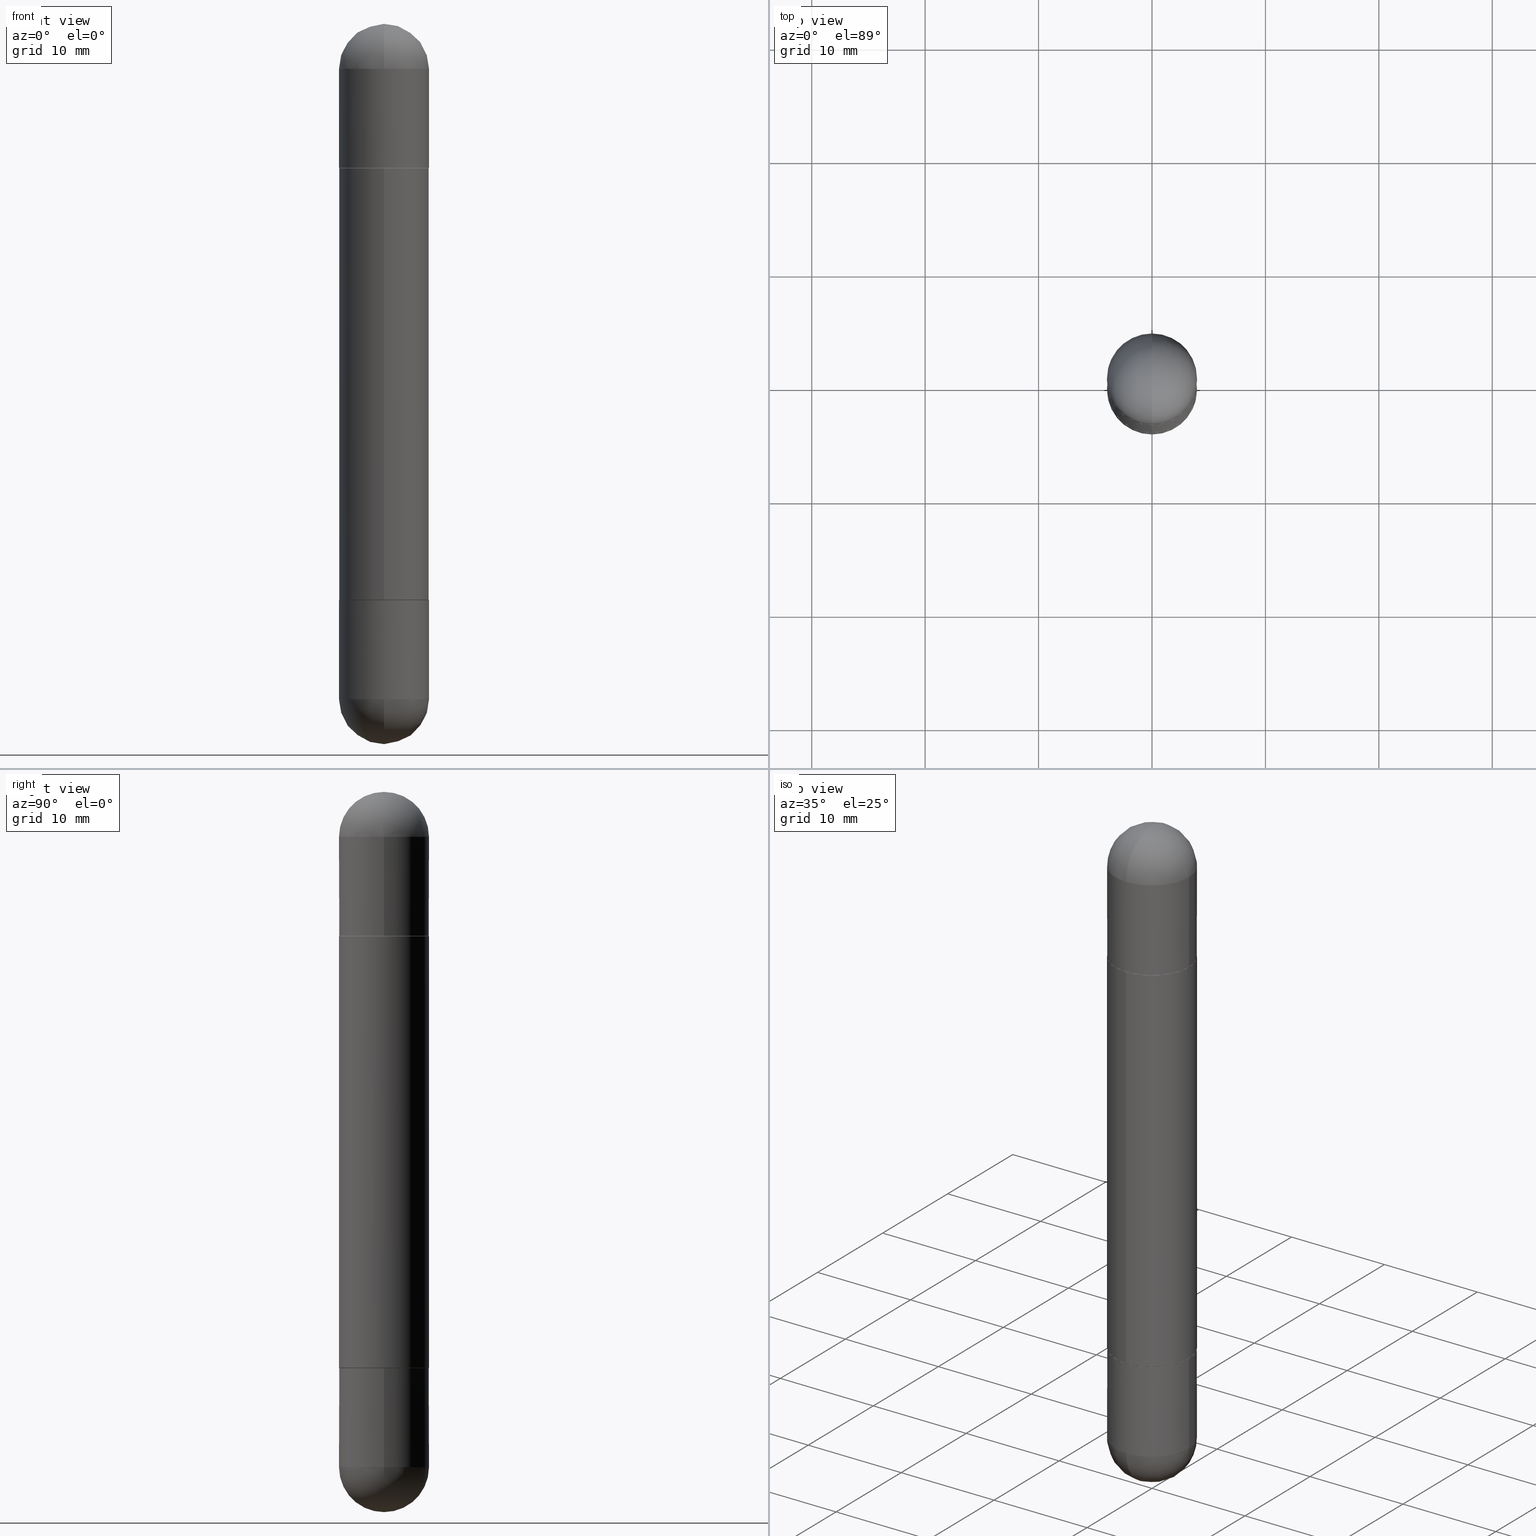
[diagram: canonical four-view strip — front | top / right | iso, engineering-drawing reading convention]
A machine part, canonical four-view strip (front | top / right | iso — engineering-drawing reading convention). The complete STEP part file that produces these views, byte-faithful:
ISO-10303-21;
HEADER;
FILE_DESCRIPTION (( 'STEP AP203' ),
    '1' );
FILE_NAME ('31574.STEP',
    '2024-03-01T12:43:01',
    ( '' ),
    ( '' ),
    'SwSTEP 2.0',
    'SolidWorks 2023',
    '' );
FILE_SCHEMA (( 'CONFIG_CONTROL_DESIGN' ));
ENDSEC;

DATA;
#1 = PERSON_AND_ORGANIZATION ( #551, #219 ) ;
#2 = DIRECTION ( 'NONE',  ( 2.438088387897960049E-29, -3.491481338843145188E-15, -1.000000000000000000 ) ) ;
#3 = FACE_OUTER_BOUND ( 'NONE', #140, .T. ) ;
#4 = EDGE_CURVE ( 'NONE', #720, #359, #300, .T. ) ;
#5 = LINE ( 'NONE', #376, #284 ) ;
#6 = ORIENTED_EDGE ( 'NONE', *, *, #548, .T. ) ;
#7 = DIRECTION ( 'NONE',  ( 1.000000000000000000, -6.982962677686262766E-15, 0.000000000000000000 ) ) ;
#8 = DIRECTION ( 'NONE',  ( -2.446114484898439135E-29, 3.490556690175946223E-15, -1.000000000000000000 ) ) ;
#9 = CLOSED_SHELL ( 'NONE', ( #247, #687, #281, #464, #86 ) ) ;
#10 = CIRCLE ( 'NONE', #246, 0.1562500000000000000 ) ;
#11 = ORIENTED_EDGE ( 'NONE', *, *, #199, .T. ) ;
#12 = CC_DESIGN_APPROVAL ( #444, ( #239 ) ) ;
#13 = DIRECTION ( 'NONE',  ( -2.445468806185136597E-29, 3.491481338843145583E-15, -1.000000000000000000 ) ) ;
#14 = DIRECTION ( 'NONE',  ( 2.446114484898439135E-29, -3.490556690175946223E-15, 1.000000000000000000 ) ) ;
#15 = EDGE_CURVE ( 'NONE', #561, #279, #458, .T. ) ;
#16 = ORIENTED_EDGE ( 'NONE', *, *, #158, .F. ) ;
#17 = DIRECTION ( 'NONE',  ( -6.982962677686265922E-15, -1.000000000000000000, -3.496765431890250609E-15 ) ) ;
#18 = CARTESIAN_POINT ( 'NONE',  ( 1.071952812151852491E-15, 0.1562499999999933109, -0.5010000000000002229 ) ) ;
#19 = PRODUCT_DEFINITION ( 'UNKNOWN', '', #328, #795 ) ;
#20 = DIRECTION ( 'NONE',  ( 1.000000000000000000, -6.982962677686265922E-15, -4.883557194083112340E-29 ) ) ;
#21 = CARTESIAN_POINT ( 'NONE',  ( 5.731567514496413899E-29, -8.183159387913622595E-15, -0.1562500000000005551 ) ) ;
#22 = AXIS2_PLACEMENT_3D ( 'NONE', #120, #638, #562 ) ;
#23 = ORIENTED_EDGE ( 'NONE', *, *, #729, .F. ) ;
#24 = CARTESIAN_POINT ( 'NONE',  ( 4.890937612370273194E-29, -6.982962677686291165E-15, -2.000000000000000000 ) ) ;
#25 =( GEOMETRIC_REPRESENTATION_CONTEXT ( 3 ) GLOBAL_UNCERTAINTY_ASSIGNED_CONTEXT ( ( #660 ) ) GLOBAL_UNIT_ASSIGNED_CONTEXT ( ( #331, #400, #26 ) ) REPRESENTATION_CONTEXT ( 'NONE', 'WORKASPACE' ) );
#26 =( NAMED_UNIT ( * ) SI_UNIT ( $, .STERADIAN. ) SOLID_ANGLE_UNIT ( ) );
#27 = DIRECTION ( 'NONE',  ( 1.000000000000000000, -6.982962677686269077E-15, 0.000000000000000000 ) ) ;
#28 = EDGE_CURVE ( 'NONE', #31, #215, #513, .T. ) ;
#29 = ORIENTED_EDGE ( 'NONE', *, *, #537, .F. ) ;
#30 = DIRECTION ( 'NONE',  ( 1.000000000000000000, -6.982962677686266711E-15, 4.876176775795936353E-29 ) ) ;
#31 = VERTEX_POINT ( 'NONE', #339 ) ;
#32 = CARTESIAN_POINT ( 'NONE',  ( 1.065092314154079104E-15, 0.1552499999999930325, -0.4999999999999998335 ) ) ;
#33 = DIRECTION ( 'NONE',  ( -2.445468806185136597E-29, 3.491481338843145583E-15, -1.000000000000000000 ) ) ;
#34 = CARTESIAN_POINT ( 'NONE',  ( 0.1562500000000000000, -1.091087918388479174E-15, -2.500000000000000444 ) ) ;
#35 = FACE_OUTER_BOUND ( 'NONE', #784, .T. ) ;
#36 = CARTESIAN_POINT ( 'NONE',  ( -1.110223024625101517E-15, -0.1562500000000085487, -2.343749999999999556 ) ) ;
#37 = CIRCLE ( 'NONE', #790, 0.1562500000000001388 ) ;
#38 = CIRCLE ( 'NONE', #135, 0.1562500000000001388 ) ;
#39 = DIRECTION ( 'NONE',  ( -2.446114484898438574E-29, 3.490556690175946618E-15, -1.000000000000000000 ) ) ;
#40 = ORIENTED_EDGE ( 'NONE', *, *, #4, .T. ) ;
#41 = ADVANCED_FACE ( 'NONE', ( #670 ), #594, .T. ) ;
#42 = DIRECTION ( 'NONE',  ( -1.000000000000000000, 6.982962677686265922E-15, 4.883557194083112340E-29 ) ) ;
#43 = ORIENTED_EDGE ( 'NONE', *, *, #199, .F. ) ;
#44 = EDGE_CURVE ( 'NONE', #470, #476, #406, .T. ) ;
#45 = VERTEX_POINT ( 'NONE', #150 ) ;
#46 = VERTEX_POINT ( 'NONE', #402 ) ;
#47 = DIRECTION ( 'NONE',  ( 1.000000000000000000, -6.982962677686266711E-15, 0.000000000000000000 ) ) ;
#48 = CIRCLE ( 'NONE', #640, 0.1562500000000000000 ) ;
#49 = CARTESIAN_POINT ( 'NONE',  ( 3.057643106123049759E-29, -4.363195862719933568E-15, -1.250000000000000222 ) ) ;
#50 = ORIENTED_EDGE ( 'NONE', *, *, #158, .T. ) ;
#51 = EDGE_LOOP ( 'NONE', ( #717, #370, #332, #584 ) ) ;
#52 = EDGE_CURVE ( 'NONE', #608, #31, #267, .T. ) ;
#53 = APPROVAL_DATE_TIME ( #609, #555 ) ;
#54 = LINE ( 'NONE', #168, #816 ) ;
#55 = ORIENTED_EDGE ( 'NONE', *, *, #324, .F. ) ;
#56 = EDGE_LOOP ( 'NONE', ( #672, #100 ) ) ;
#57 = ORIENTED_EDGE ( 'NONE', *, *, #788, .F. ) ;
#58 = CARTESIAN_POINT ( 'NONE',  ( -0.1562500000000000000, -6.472838008174800734E-15, -2.343750000000000000 ) ) ;
#59 = AXIS2_PLACEMENT_3D ( 'NONE', #656, #174, #539 ) ;
#60 = DIRECTION ( 'NONE',  ( -2.446114484898439135E-29, 3.490556690175946618E-15, -1.000000000000000000 ) ) ;
#61 = AXIS2_PLACEMENT_3D ( 'NONE', #641, #498, #323 ) ;
#62 = ORIENTED_EDGE ( 'NONE', *, *, #15, .F. ) ;
#63 = EDGE_CURVE ( 'NONE', #279, #767, #731, .T. ) ;
#64 = DIRECTION ( 'NONE',  ( 1.000000000000000000, -6.982962677686266711E-15, 0.000000000000000000 ) ) ;
#65 = EDGE_CURVE ( 'NONE', #629, #229, #271, .T. ) ;
#66 = FACE_OUTER_BOUND ( 'NONE', #383, .T. ) ;
#67 = ORIENTED_EDGE ( 'NONE', *, *, #63, .T. ) ;
#68 = LINE ( 'NONE', #493, #283 ) ;
#69 = DIRECTION ( 'NONE',  ( -2.446114484898439135E-29, 3.490556690175946223E-15, -1.000000000000000000 ) ) ;
#70 = ADVANCED_FACE ( 'NONE', ( #326 ), #334, .T. ) ;
#71 = VERTEX_POINT ( 'NONE', #805 ) ;
#72 = CYLINDRICAL_SURFACE ( 'NONE', #473, 0.1562500000000000000 ) ;
#73 = DIRECTION ( 'NONE',  ( -6.982962677686265922E-15, -1.000000000000000000, -3.496765431890253764E-15 ) ) ;
#74 = APPLICATION_CONTEXT ( 'configuration controlled 3d designs of mechanical parts and assemblies' ) ;
#75 = VECTOR ( 'NONE', #485, 39.37007874015748143 ) ;
#76 = AXIS2_PLACEMENT_3D ( 'NONE', #626, #8, #517 ) ;
#77 = DIRECTION ( 'NONE',  ( -2.445468806185136597E-29, 3.491481338843145583E-15, 1.000000000000000000 ) ) ;
#78 = ADVANCED_FACE ( 'NONE', ( #741 ), #106, .T. ) ;
#79 = DIRECTION ( 'NONE',  ( 2.445468806185136597E-29, -3.491481338843145583E-15, 1.000000000000000000 ) ) ;
#80 = DIRECTION ( 'NONE',  ( -2.446114484898439135E-29, 3.490556690175946223E-15, 1.000000000000000000 ) ) ;
#81 = CARTESIAN_POINT ( 'NONE',  ( -0.1562500000000000000, -6.511108220648156257E-15, -0.1562500000000005551 ) ) ;
#82 = ORIENTED_EDGE ( 'NONE', *, *, #468, .F. ) ;
#83 = DIRECTION ( 'NONE',  ( -6.982962677686265922E-15, -1.000000000000000000, -3.496765431890253764E-15 ) ) ;
#84 = AXIS2_PLACEMENT_3D ( 'NONE', #599, #714, #385 ) ;
#85 = AXIS2_PLACEMENT_3D ( 'NONE', #786, #650, #83 ) ;
#86 = ADVANCED_FACE ( 'NONE', ( #169 ), #540, .T. ) ;
#87 = DIRECTION ( 'NONE',  ( 1.000000000000000000, -6.982962677686269077E-15, 0.000000000000000000 ) ) ;
#88 = CIRCLE ( 'NONE', #448, 0.1552499999999999991 ) ;
#89 = PERSON_AND_ORGANIZATION_ROLE ( 'design_owner' ) ;
#90 = DIRECTION ( 'NONE',  ( 6.860497997771530774E-15, 1.000000000000000000, 0.000000000000000000 ) ) ;
#91 = DIRECTION ( 'NONE',  ( -6.982962677686265922E-15, -1.000000000000000000, -3.519288880726909138E-15 ) ) ;
#92 = DIRECTION ( 'NONE',  ( 6.982962677686265922E-15, 1.000000000000000000, 3.496765431890251398E-15 ) ) ;
#93 = EDGE_CURVE ( 'NONE', #236, #521, #546, .T. ) ;
#94 = COORDINATED_UNIVERSAL_TIME_OFFSET ( 5, 0, .BEHIND. ) ;
#95 = CARTESIAN_POINT ( 'NONE',  ( 5.731567514496413899E-29, -8.183159387913622595E-15, -0.1562500000000005551 ) ) ;
#96 = AXIS2_PLACEMENT_3D ( 'NONE', #273, #813, #288 ) ;
#97 = VECTOR ( 'NONE', #510, 39.37007874015748143 ) ;
#98 = CC_DESIGN_DATE_AND_TIME_ASSIGNMENT ( #302, #165, ( #19 ) ) ;
#99 = DIRECTION ( 'NONE',  ( -2.445468806185136597E-29, 3.491481338843145583E-15, 1.000000000000000000 ) ) ;
#100 = ORIENTED_EDGE ( 'NONE', *, *, #153, .T. ) ;
#101 = CARTESIAN_POINT ( 'NONE',  ( 4.892228969796878830E-29, -6.981113380351893236E-15, -0.5000000000000004441 ) ) ;
#102 = ORIENTED_EDGE ( 'NONE', *, *, #335, .F. ) ;
#103 = CARTESIAN_POINT ( 'NONE',  ( 1.065092314154079104E-15, 0.1552499999999930325, -0.4999999999999998335 ) ) ;
#104 = DIRECTION ( 'NONE',  ( 1.000000000000000000, -6.982962677686266711E-15, 0.000000000000000000 ) ) ;
#105 = EDGE_CURVE ( 'NONE', #470, #287, #577, .T. ) ;
#106 = CONICAL_SURFACE ( 'NONE', #121, 0.1552499999999999991, 0.7853981633974141952 ) ;
#107 = CIRCLE ( 'NONE', #590, 0.1562500000000002498 ) ;
#108 = ORIENTED_EDGE ( 'NONE', *, *, #518, .F. ) ;
#109 = DATE_AND_TIME ( #812, #149 ) ;
#110 = DIRECTION ( 'NONE',  ( -1.000000000000000000, 6.982962677686265922E-15, -4.876176775795935793E-29 ) ) ;
#111 = EDGE_LOOP ( 'NONE', ( #649, #258, #112, #305, #128 ) ) ;
#112 = ORIENTED_EDGE ( 'NONE', *, *, #533, .F. ) ;
#113 = CALENDAR_DATE ( 2024, 1, 3 ) ;
#114 = CARTESIAN_POINT ( 'NONE',  ( -1.091087918388440322E-15, -0.1562500000000045242, -1.250000000000000222 ) ) ;
#115 = ORIENTED_EDGE ( 'NONE', *, *, #142, .F. ) ;
#116 = CARTESIAN_POINT ( 'NONE',  ( 0.1562500000000000000, -8.074050596074770339E-15, -0.5000000000000006661 ) ) ;
#117 = APPROVAL_DATE_TIME ( #226, #125 ) ;
#118 = ADVANCED_FACE ( 'NONE', ( #645 ), #322, .F. ) ;
#119 = CARTESIAN_POINT ( 'NONE',  ( 5.400447736582527652E-29, -8.657341756053672891E-15, -2.343750000000000000 ) ) ;
#120 = CARTESIAN_POINT ( 'NONE',  ( 4.889782855311979497E-29, -6.977622823661715870E-15, -0.5010000000000007780 ) ) ;
#121 = AXIS2_PLACEMENT_3D ( 'NONE', #101, #285, #289 ) ;
#122 = CIRCLE ( 'NONE', #433, 0.1562500000000002776 ) ;
#123 = AXIS2_PLACEMENT_3D ( 'NONE', #394, #787, #531 ) ;
#124 = DIRECTION ( 'NONE',  ( 2.445468806185136597E-29, -3.491481338843145583E-15, 1.000000000000000000 ) ) ;
#125 = APPROVAL ( #346, 'UNSPECIFIED' ) ;
#126 = DIRECTION ( 'NONE',  ( -0.000000000000000000, -0.000000000000000000, -1.000000000000000000 ) ) ;
#127 = DIRECTION ( 'NONE',  ( 1.000000000000000000, -6.982962677686262766E-15, 0.000000000000000000 ) ) ;
#128 = ORIENTED_EDGE ( 'NONE', *, *, #335, .T. ) ;
#129 = CARTESIAN_POINT ( 'NONE',  ( 5.731567514496413899E-29, -8.183159387913622595E-15, -2.343750000000000000 ) ) ;
#130 = FACE_OUTER_BOUND ( 'NONE', #138, .T. ) ;
#131 = CARTESIAN_POINT ( 'NONE',  ( 5.731567514496413899E-29, -8.183159387913622595E-15, -2.343750000000000000 ) ) ;
#132 = EDGE_CURVE ( 'NONE', #810, #713, #803, .T. ) ;
#133 = SPHERICAL_SURFACE ( 'NONE', #61, 0.1562500000000002498 ) ;
#134 = AXIS2_PLACEMENT_3D ( 'NONE', #129, #188, #7 ) ;
#135 = AXIS2_PLACEMENT_3D ( 'NONE', #49, #611, #227 ) ;
#136 = CIRCLE ( 'NONE', #475, 0.1562500000000000000 ) ;
#137 = DIRECTION ( 'NONE',  ( 2.445468806185136597E-29, -3.491481338843145583E-15, 1.000000000000000000 ) ) ;
#138 = EDGE_LOOP ( 'NONE', ( #55, #479, #655, #426 ) ) ;
#139 = CYLINDRICAL_SURFACE ( 'NONE', #186, 0.1562500000000001388 ) ;
#140 = EDGE_LOOP ( 'NONE', ( #738, #183, #508, #251, #62 ) ) ;
#141 = DIRECTION ( 'NONE',  ( -6.982962677686265922E-15, -1.000000000000000000, 3.519288880726909138E-15 ) ) ;
#142 = EDGE_CURVE ( 'NONE', #45, #287, #724, .T. ) ;
#143 = ORIENTED_EDGE ( 'NONE', *, *, #674, .F. ) ;
#144 = CARTESIAN_POINT ( 'NONE',  ( 4.892228969796878830E-29, -6.981113380351893236E-15, -2.000000000000000444 ) ) ;
#145 = PERSON_AND_ORGANIZATION ( #551, #219 ) ;
#146 = CONICAL_SURFACE ( 'NONE', #352, 0.1552499999999999991, 0.7853981633974141952 ) ;
#147 = AXIS2_PLACEMENT_3D ( 'NONE', #256, #569, #17 ) ;
#148 = CARTESIAN_POINT ( 'NONE',  ( 5.400447736582527652E-29, -8.657341756053672891E-15, -0.1562500000000005551 ) ) ;
#149 = LOCAL_TIME ( 7, 43, 1.000000000000000000, #238 ) ;
#150 = CARTESIAN_POINT ( 'NONE',  ( 0.1562500000000000000, -8.674148951188436448E-15, -2.343750000000000000 ) ) ;
#151 = FACE_OUTER_BOUND ( 'NONE', #769, .T. ) ;
#152 = CARTESIAN_POINT ( 'NONE',  ( 1.071952812151833755E-15, 0.1562499999999933109, -1.999000000000000554 ) ) ;
#153 = EDGE_CURVE ( 'NONE', #71, #567, #37, .T. ) ;
#154 = DIRECTION ( 'NONE',  ( 2.446114484898439135E-29, -3.490556690175946223E-15, 1.000000000000000000 ) ) ;
#155 = APPROVAL_STATUS ( 'not_yet_approved' ) ;
#156 = CARTESIAN_POINT ( 'NONE',  ( 5.400447736582527652E-29, -8.657341756053672891E-15, -0.1562500000000005551 ) ) ;
#157 = ORIENTED_EDGE ( 'NONE', *, *, #468, .T. ) ;
#158 = EDGE_CURVE ( 'NONE', #767, #807, #282, .T. ) ;
#159 = ORIENTED_EDGE ( 'NONE', *, *, #205, .T. ) ;
#160 = DIRECTION ( 'NONE',  ( -6.982962677686265922E-15, -1.000000000000000000, 3.519288880726909138E-15 ) ) ;
#161 = DIRECTION ( 'NONE',  ( 1.000000000000000000, -6.982962677686262766E-15, 0.000000000000000000 ) ) ;
#162 = AXIS2_PLACEMENT_3D ( 'NONE', #24, #730, #27 ) ;
#163 = AXIS2_PLACEMENT_3D ( 'NONE', #798, #39, #214 ) ;
#164 = EDGE_LOOP ( 'NONE', ( #422, #345, #643, #478 ) ) ;
#165 = DATE_TIME_ROLE ( 'creation_date' ) ;
#166 = ORIENTED_EDGE ( 'NONE', *, *, #310, .T. ) ;
#167 = EDGE_LOOP ( 'NONE', ( #469, #726, #606, #703 ) ) ;
#168 = CARTESIAN_POINT ( 'NONE',  ( -1.091087918388479962E-15, -0.1562500000000001388, -2.500000000000001332 ) ) ;
#169 = FACE_OUTER_BOUND ( 'NONE', #111, .T. ) ;
#170 = ADVANCED_FACE ( 'NONE', ( #3 ), #692, .T. ) ;
#171 = FACE_OUTER_BOUND ( 'NONE', #596, .T. ) ;
#172 = ORIENTED_EDGE ( 'NONE', *, *, #665, .F. ) ;
#173 = ORIENTED_EDGE ( 'NONE', *, *, #65, .F. ) ;
#174 = DIRECTION ( 'NONE',  ( 2.438088387897960049E-29, -3.491481338843145188E-15, 1.000000000000000000 ) ) ;
#175 = DIRECTION ( 'NONE',  ( -6.982962677686265922E-15, -1.000000000000000000, -3.519288880726909138E-15 ) ) ;
#176 = ADVANCED_FACE ( 'NONE', ( #299 ), #146, .T. ) ;
#177 = ORIENTED_EDGE ( 'NONE', *, *, #15, .T. ) ;
#178 = CARTESIAN_POINT ( 'NONE',  ( 0.000000000000000000, 0.000000000000000000, -2.500000000000000444 ) ) ;
#179 = ORIENTED_EDGE ( 'NONE', *, *, #221, .T. ) ;
#180 = CARTESIAN_POINT ( 'NONE',  ( 3.057643106123049759E-29, -4.363195862719933568E-15, -1.250000000000000222 ) ) ;
#181 = PRODUCT_RELATED_PRODUCT_CATEGORY ( 'detail', '', ( #382 ) ) ;
#182 = FACE_OUTER_BOUND ( 'NONE', #667, .T. ) ;
#183 = ORIENTED_EDGE ( 'NONE', *, *, #665, .T. ) ;
#184 = CARTESIAN_POINT ( 'NONE',  ( 4.890937612370273194E-29, -6.982962677686291165E-15, -0.5000000000000006661 ) ) ;
#185 = CIRCLE ( 'NONE', #395, 0.1552499999999999991 ) ;
#186 = AXIS2_PLACEMENT_3D ( 'NONE', #715, #200, #73 ) ;
#187 = DIRECTION ( 'NONE',  ( -2.445468806185136597E-29, 3.491481338843145583E-15, 1.000000000000000000 ) ) ;
#188 = DIRECTION ( 'NONE',  ( -2.445468806185136597E-29, 3.491481338843145583E-15, 1.000000000000000000 ) ) ;
#189 = CARTESIAN_POINT ( 'NONE',  ( 5.789233224183170584E-29, -9.193318162129576161E-15, -3.073328992872296367E-16 ) ) ;
#190 = ORIENTED_EDGE ( 'NONE', *, *, #806, .T. ) ;
#191 = ADVANCED_FACE ( 'NONE', ( #754 ), #313, .F. ) ;
#192 = CARTESIAN_POINT ( 'NONE',  ( 5.731567514496413899E-29, -8.183159387913622595E-15, -0.1562500000000005551 ) ) ;
#193 = CARTESIAN_POINT ( 'NONE',  ( 0.1562500000000000000, -1.091087918388479174E-15, 7.619026212181150377E-30 ) ) ;
#194 = DIRECTION ( 'NONE',  ( 2.445468806185136597E-29, -3.491481338843145583E-15, 1.000000000000000000 ) ) ;
#195 = DIRECTION ( 'NONE',  ( 2.445468806185136597E-29, -3.491481338843145583E-15, 1.000000000000000000 ) ) ;
#196 = AXIS2_PLACEMENT_3D ( 'NONE', #576, #388, #384 ) ;
#197 = CONICAL_SURFACE ( 'NONE', #782, 0.1552499999999999991, 0.7853981633974141952 ) ;
#198 = DIRECTION ( 'NONE',  ( 1.000000000000000000, -6.982962677686262766E-15, 0.000000000000000000 ) ) ;
#199 = EDGE_CURVE ( 'NONE', #291, #236, #68, .T. ) ;
#200 = DIRECTION ( 'NONE',  ( -2.446114484898439135E-29, 3.490556690175946223E-15, -1.000000000000000000 ) ) ;
#201 = VERTEX_POINT ( 'NONE', #243 ) ;
#202 = FACE_OUTER_BOUND ( 'NONE', #659, .T. ) ;
#203 = DIRECTION ( 'NONE',  ( 1.000000000000000000, 0.000000000000000000, 0.000000000000000000 ) ) ;
#204 = LINE ( 'NONE', #661, #514 ) ;
#205 = EDGE_CURVE ( 'NONE', #608, #201, #10, .T. ) ;
#206 = DIRECTION ( 'NONE',  ( 0.000000000000000000, 0.000000000000000000, 1.000000000000000000 ) ) ;
#207 = AXIS2_PLACEMENT_3D ( 'NONE', #269, #276, #733 ) ;
#208 = AXIS2_PLACEMENT_3D ( 'NONE', #489, #364, #616 ) ;
#209 = LINE ( 'NONE', #32, #419 ) ;
#210 = DIRECTION ( 'NONE',  ( -2.445468806185136597E-29, 3.491481338843145583E-15, 1.000000000000000000 ) ) ;
#211 = ORIENTED_EDGE ( 'NONE', *, *, #634, .F. ) ;
#212 = CC_DESIGN_DATE_AND_TIME_ASSIGNMENT ( #109, #491, ( #239 ) ) ;
#213 = EDGE_LOOP ( 'NONE', ( #511, #389 ) ) ;
#214 = DIRECTION ( 'NONE',  ( -6.982962677686265922E-15, -1.000000000000000000, -3.490556690175946618E-15 ) ) ;
#215 = VERTEX_POINT ( 'NONE', #116 ) ;
#216 = CARTESIAN_POINT ( 'NONE',  ( -0.1562500000000000000, -6.511108220648155468E-15, -0.5000000000000006661 ) ) ;
#217 = AXIS2_PLACEMENT_3D ( 'NONE', #579, #671, #280 ) ;
#218 = VECTOR ( 'NONE', #304, 39.37007874015748854 ) ;
#219 = ORGANIZATION ( 'UNSPECIFIED', 'UNSPECIFIED', '' ) ;
#220 = ORIENTED_EDGE ( 'NONE', *, *, #600, .F. ) ;
#221 = EDGE_CURVE ( 'NONE', #734, #736, #459, .T. ) ;
#222 = PLANE ( 'NONE',  #96 ) ;
#223 = DIRECTION ( 'NONE',  ( -2.445468806185136597E-29, 3.491481338843145583E-15, -1.000000000000000000 ) ) ;
#224 = ORIENTED_EDGE ( 'NONE', *, *, #372, .F. ) ;
#225 = ORIENTED_EDGE ( 'NONE', *, *, #696, .T. ) ;
#226 = DATE_AND_TIME ( #414, #274 ) ;
#227 = DIRECTION ( 'NONE',  ( -1.000000000000000000, 0.000000000000000000, 0.000000000000000000 ) ) ;
#228 = CARTESIAN_POINT ( 'NONE',  ( 0.000000000000000000, 0.000000000000000000, -2.500000000000000444 ) ) ;
#229 = VERTEX_POINT ( 'NONE', #628 ) ;
#230 = SHAPE_DEFINITION_REPRESENTATION ( #558, #317 ) ;
#231 = APPLICATION_CONTEXT ( 'configuration controlled 3d designs of mechanical parts and assemblies' ) ;
#232 = CARTESIAN_POINT ( 'NONE',  ( 5.731567514496413899E-29, -8.183159387913622595E-15, -0.1562500000000005551 ) ) ;
#233 = VERTEX_POINT ( 'NONE', #550 ) ;
#234 = EDGE_CURVE ( 'NONE', #410, #746, #107, .T. ) ;
#235 = SPHERICAL_SURFACE ( 'NONE', #208, 0.1562500000000002498 ) ;
#236 = VERTEX_POINT ( 'NONE', #501 ) ;
#237 = CIRCLE ( 'NONE', #750, 0.1562500000000000000 ) ;
#238 = COORDINATED_UNIVERSAL_TIME_OFFSET ( 5, 0, .BEHIND. ) ;
#239 = SECURITY_CLASSIFICATION ( '', '', #598 ) ;
#240 = FACE_OUTER_BOUND ( 'NONE', #56, .T. ) ;
#241 = DIRECTION ( 'NONE',  ( -2.446114484898438574E-29, 3.490556690175946618E-15, -1.000000000000000000 ) ) ;
#242 = LINE ( 'NONE', #751, #75 ) ;
#243 = CARTESIAN_POINT ( 'NONE',  ( -1.071952812151746981E-15, -0.1562500000000085487, -0.1562500000000011102 ) ) ;
#244 = CARTESIAN_POINT ( 'NONE',  ( -1.091087918388432039E-15, -0.1562500000000072442, -0.5010000000000013332 ) ) ;
#245 = CARTESIAN_POINT ( 'NONE',  ( 5.400447736582527652E-29, -8.657341756053672891E-15, -0.1562500000000005551 ) ) ;
#246 = AXIS2_PLACEMENT_3D ( 'NONE', #375, #633, #505 ) ;
#247 = ADVANCED_FACE ( 'NONE', ( #441 ), #72, .T. ) ;
#248 = SPHERICAL_SURFACE ( 'NONE', #396, 0.1562500000000002498 ) ;
#249 = EDGE_LOOP ( 'NONE', ( #632, #57, #157, #797 ) ) ;
#250 = CARTESIAN_POINT ( 'NONE',  ( 4.892228969796878830E-29, -6.981113380351893236E-15, -0.5000000000000004441 ) ) ;
#251 = ORIENTED_EDGE ( 'NONE', *, *, #63, .F. ) ;
#252 = CARTESIAN_POINT ( 'NONE',  ( 1.068522563152965797E-15, 0.1552499999999930325, -0.4999999999999998335 ) ) ;
#253 = DIRECTION ( 'NONE',  ( -2.446114484898439135E-29, 3.490556690175946618E-15, -1.000000000000000000 ) ) ;
#254 = ORIENTED_EDGE ( 'NONE', *, *, #806, .F. ) ;
#255 = EDGE_CURVE ( 'NONE', #359, #608, #237, .T. ) ;
#256 = CARTESIAN_POINT ( 'NONE',  ( 4.889782855311979497E-29, -6.977622823661715870E-15, -0.5010000000000007780 ) ) ;
#257 = VECTOR ( 'NONE', #399, 39.37007874015748143 ) ;
#258 = ORIENTED_EDGE ( 'NONE', *, *, #255, .F. ) ;
#259 = DIRECTION ( 'NONE',  ( 1.000000000000000000, -6.982962677686262766E-15, 0.000000000000000000 ) ) ;
#260 = AXIS2_PLACEMENT_3D ( 'NONE', #232, #545, #747 ) ;
#261 = AXIS2_PLACEMENT_3D ( 'NONE', #405, #663, #160 ) ;
#262 = DIRECTION ( 'NONE',  ( 2.446114484898439135E-29, -3.490556690175946223E-15, 1.000000000000000000 ) ) ;
#263 = EDGE_CURVE ( 'NONE', #287, #291, #563, .T. ) ;
#264 = SPHERICAL_SURFACE ( 'NONE', #777, 0.1562500000000002498 ) ;
#265 = APPLICATION_PROTOCOL_DEFINITION ( 'international standard', 'config_control_design', 1994, #74 ) ;
#266 = CYLINDRICAL_SURFACE ( 'NONE', #85, 0.1562500000000001388 ) ;
#267 = LINE ( 'NONE', #465, #804 ) ;
#268 =( LENGTH_UNIT ( ) NAMED_UNIT ( * ) SI_UNIT ( $, .METRE. ) );
#269 = CARTESIAN_POINT ( 'NONE',  ( 0.000000000000000000, 0.000000000000000000, -2.500000000000000444 ) ) ;
#270 = EDGE_CURVE ( 'NONE', #595, #561, #639, .T. ) ;
#271 = CIRCLE ( 'NONE', #367, 0.1552499999999999991 ) ;
#272 = AXIS2_PLACEMENT_3D ( 'NONE', #789, #137, #198 ) ;
#273 = CARTESIAN_POINT ( 'NONE',  ( 0.000000000000000000, 0.000000000000000000, -1.250000000000000222 ) ) ;
#274 = LOCAL_TIME ( 7, 43, 1.000000000000000000, #417 ) ;
#275 = PLANE ( 'NONE',  #163 ) ;
#276 = DIRECTION ( 'NONE',  ( -2.446114484898439135E-29, 3.490556690175946223E-15, -1.000000000000000000 ) ) ;
#277 = ORIENTED_EDGE ( 'NONE', *, *, #482, .T. ) ;
#278 = DIRECTION ( 'NONE',  ( -7.105427357601000281E-15, -1.000000000000000000, 0.000000000000000000 ) ) ;
#279 = VERTEX_POINT ( 'NONE', #424 ) ;
#280 = DIRECTION ( 'NONE',  ( -6.982962677686265922E-15, -1.000000000000000000, 3.490556690175946618E-15 ) ) ;
#281 = ADVANCED_FACE ( 'NONE', ( #432 ), #235, .T. ) ;
#282 = CIRCLE ( 'NONE', #523, 0.1562500000000000000 ) ;
#283 = VECTOR ( 'NONE', #373, 39.37007874015748143 ) ;
#284 = VECTOR ( 'NONE', #647, 39.37007874015748143 ) ;
#285 = DIRECTION ( 'NONE',  ( -2.446114484898439135E-29, 3.490556690175946223E-15, -1.000000000000000000 ) ) ;
#286 = ORIENTED_EDGE ( 'NONE', *, *, #537, .T. ) ;
#287 = VERTEX_POINT ( 'NONE', #815 ) ;
#288 = DIRECTION ( 'NONE',  ( -1.000000000000000000, 0.000000000000000000, 0.000000000000000000 ) ) ;
#289 = DIRECTION ( 'NONE',  ( -6.982962677686265922E-15, -1.000000000000000000, -3.519288880726909138E-15 ) ) ;
#290 = PERSON_AND_ORGANIZATION ( #551, #219 ) ;
#291 = VERTEX_POINT ( 'NONE', #58 ) ;
#292 = EDGE_CURVE ( 'NONE', #201, #233, #725, .T. ) ;
#293 = LINE ( 'NONE', #604, #524 ) ;
#294 = ORIENTED_EDGE ( 'NONE', *, *, #404, .F. ) ;
#295 = PERSON_AND_ORGANIZATION_ROLE ( 'classification_officer' ) ;
#296 = DIRECTION ( 'NONE',  ( -6.982962677686265922E-15, -1.000000000000000000, -3.496765431890253764E-15 ) ) ;
#297 = VERTEX_POINT ( 'NONE', #252 ) ;
#298 = AXIS2_PLACEMENT_3D ( 'NONE', #95, #525, #161 ) ;
#299 = FACE_OUTER_BOUND ( 'NONE', #312, .T. ) ;
#300 = CIRCLE ( 'NONE', #619, 0.1562500000000002498 ) ;
#301 = AXIS2_PLACEMENT_3D ( 'NONE', #721, #585, #709 ) ;
#302 = DATE_AND_TIME ( #617, #792 ) ;
#303 = AXIS2_PLACEMENT_3D ( 'NONE', #21, #79, #127 ) ;
#304 = DIRECTION ( 'NONE',  ( 4.851104656540797036E-15, 0.7071067811865257013, -0.7071067811865691111 ) ) ;
#305 = ORIENTED_EDGE ( 'NONE', *, *, #360, .T. ) ;
#306 = DIRECTION ( 'NONE',  ( 2.445468806185136597E-29, -3.491481338843145583E-15, 1.000000000000000000 ) ) ;
#307 = ORIENTED_EDGE ( 'NONE', *, *, #360, .F. ) ;
#308 = DIRECTION ( 'NONE',  ( 1.000000000000000000, -6.982962677686265922E-15, -4.883557194083112340E-29 ) ) ;
#309 = DIRECTION ( 'NONE',  ( -1.000000000000000000, 6.982962677686265922E-15, 4.883557194083112340E-29 ) ) ;
#310 = EDGE_CURVE ( 'NONE', #436, #570, #341, .T. ) ;
#311 = LINE ( 'NONE', #770, #342 ) ;
#312 = EDGE_LOOP ( 'NONE', ( #173, #6, #179, #220 ) ) ;
#313 = PLANE ( 'NONE',  #499 ) ;
#314 = CIRCLE ( 'NONE', #791, 0.1552499999999999991 ) ;
#315 = LOCAL_TIME ( 7, 43, 1.000000000000000000, #94 ) ;
#316 = DIRECTION ( 'NONE',  ( 1.000000000000000000, -6.982962677686262766E-15, 0.000000000000000000 ) ) ;
#317 = ADVANCED_BREP_SHAPE_REPRESENTATION ( '31574', ( #635, #353, #646, #642, #625, #580 ), #25 ) ;
#318 = LINE ( 'NONE', #451, #526 ) ;
#319 = ADVANCED_FACE ( 'NONE', ( #512 ), #680, .T. ) ;
#320 = ORIENTED_EDGE ( 'NONE', *, *, #93, .F. ) ;
#321 = FACE_OUTER_BOUND ( 'NONE', #757, .T. ) ;
#322 = PLANE ( 'NONE',  #217 ) ;
#323 = DIRECTION ( 'NONE',  ( 6.982962677686265922E-15, 1.000000000000000000, 3.496765431890251398E-15 ) ) ;
#324 = EDGE_CURVE ( 'NONE', #297, #810, #763, .T. ) ;
#325 = CARTESIAN_POINT ( 'NONE',  ( 4.892228969796878830E-29, -6.981113380351893236E-15, -0.5000000000000004441 ) ) ;
#326 = FACE_OUTER_BOUND ( 'NONE', #818, .T. ) ;
#327 = AXIS2_PLACEMENT_3D ( 'NONE', #530, #799, #278 ) ;
#328 = PRODUCT_DEFINITION_FORMATION_WITH_SPECIFIED_SOURCE ( 'ANY', '', #382, .NOT_KNOWN. ) ;
#329 = DIRECTION ( 'NONE',  ( -2.446114484898439135E-29, 3.490556690175946223E-15, 1.000000000000000000 ) ) ;
#330 = ORIENTED_EDGE ( 'NONE', *, *, #221, .F. ) ;
#331 =( CONVERSION_BASED_UNIT ( 'INCH', #520 ) LENGTH_UNIT ( ) NAMED_UNIT ( #416 ) );
#332 = ORIENTED_EDGE ( 'NONE', *, *, #500, .T. ) ;
#333 = FACE_OUTER_BOUND ( 'NONE', #771, .T. ) ;
#334 = CYLINDRICAL_SURFACE ( 'NONE', #679, 0.1562500000000000000 ) ;
#335 = EDGE_CURVE ( 'NONE', #215, #31, #780, .T. ) ;
#336 = CARTESIAN_POINT ( 'NONE',  ( -1.084104955710744053E-15, -0.1552500000000069658, -0.5000000000000009992 ) ) ;
#337 = DIRECTION ( 'NONE',  ( 1.000000000000000000, -6.982962677686262766E-15, 0.000000000000000000 ) ) ;
#338 = CALENDAR_DATE ( 2024, 1, 3 ) ;
#339 = CARTESIAN_POINT ( 'NONE',  ( -0.1562500000000000000, -6.511108220648155468E-15, -0.5000000000000006661 ) ) ;
#340 = CLOSED_SHELL ( 'NONE', ( #170, #653, #430, #378, #70 ) ) ;
#341 = CIRCLE ( 'NONE', #549, 0.1562500000000002776 ) ;
#342 = VECTOR ( 'NONE', #253, 39.37007874015748143 ) ;
#343 = CARTESIAN_POINT ( 'NONE',  ( 0.000000000000000000, 0.000000000000000000, 0.000000000000000000 ) ) ;
#344 = EDGE_CURVE ( 'NONE', #570, #436, #122, .T. ) ;
#345 = ORIENTED_EDGE ( 'NONE', *, *, #712, .F. ) ;
#346 = APPROVAL_STATUS ( 'not_yet_approved' ) ;
#347 = ORIENTED_EDGE ( 'NONE', *, *, #255, .T. ) ;
#348 = EDGE_LOOP ( 'NONE', ( #29, #536, #597, #466 ) ) ;
#349 = PERSON_AND_ORGANIZATION_ROLE ( 'design_supplier' ) ;
#350 = DIRECTION ( 'NONE',  ( -6.982962677686265922E-15, -1.000000000000000000, 3.519288880726909138E-15 ) ) ;
#351 = DIRECTION ( 'NONE',  ( 1.000000000000000000, -6.982962677686269077E-15, 0.000000000000000000 ) ) ;
#352 = AXIS2_PLACEMENT_3D ( 'NONE', #250, #765, #175 ) ;
#353 = MANIFOLD_SOLID_BREP ( 'Mirror4[1]', #776 ) ;
#354 = LOCAL_TIME ( 7, 43, 1.000000000000000000, #356 ) ;
#355 = ORIENTED_EDGE ( 'NONE', *, *, #404, .T. ) ;
#356 = COORDINATED_UNIVERSAL_TIME_OFFSET ( 5, 0, .BEHIND. ) ;
#357 = LINE ( 'NONE', #103, #218 ) ;
#358 = ORIENTED_EDGE ( 'NONE', *, *, #263, .F. ) ;
#359 = VERTEX_POINT ( 'NONE', #582 ) ;
#360 = EDGE_CURVE ( 'NONE', #233, #215, #204, .T. ) ;
#361 = ORIENTED_EDGE ( 'NONE', *, *, #65, .T. ) ;
#362 = CARTESIAN_POINT ( 'NONE',  ( -1.091087918388432039E-15, -0.1562500000000072442, -1.998999999999999444 ) ) ;
#363 = ORIENTED_EDGE ( 'NONE', *, *, #748, .F. ) ;
#364 = DIRECTION ( 'NONE',  ( 1.000000000000000000, -6.982962677686265922E-15, -4.883557194083112340E-29 ) ) ;
#365 = APPROVAL_STATUS ( 'not_yet_approved' ) ;
#366 = DIRECTION ( 'NONE',  ( -1.000000000000000000, 6.982962677686265922E-15, -4.883557194083112340E-29 ) ) ;
#367 = AXIS2_PLACEMENT_3D ( 'NONE', #662, #154, #91 ) ;
#368 = DIRECTION ( 'NONE',  ( -4.937700262164378437E-15, -0.7071067811865208164, -0.7071067811865739960 ) ) ;
#369 = AXIS2_PLACEMENT_3D ( 'NONE', #553, #745, #681 ) ;
#370 = ORIENTED_EDGE ( 'NONE', *, *, #413, .T. ) ;
#371 = DIRECTION ( 'NONE',  ( -6.982962677686265922E-15, -1.000000000000000000, -3.519288880726909138E-15 ) ) ;
#372 = EDGE_CURVE ( 'NONE', #720, #201, #578, .T. ) ;
#373 = DIRECTION ( 'NONE',  ( -2.445468806185136877E-29, 3.491481338843145188E-15, 1.000000000000000000 ) ) ;
#374 = CARTESIAN_POINT ( 'NONE',  ( -1.084104955710744053E-15, -0.1552500000000069658, -1.999999999999999778 ) ) ;
#375 = CARTESIAN_POINT ( 'NONE',  ( 5.731567514496413899E-29, -8.183159387913622595E-15, -0.1562500000000005551 ) ) ;
#376 = CARTESIAN_POINT ( 'NONE',  ( 1.071952812151802595E-15, 0.1562500000000001388, -2.500000000000000000 ) ) ;
#377 = DIRECTION ( 'NONE',  ( 2.445468806185136597E-29, -3.491481338843145583E-15, 1.000000000000000000 ) ) ;
#378 = ADVANCED_FACE ( 'NONE', ( #333 ), #443, .F. ) ;
#379 = AXIS2_PLACEMENT_3D ( 'NONE', #644, #457, #723 ) ;
#380 = AXIS2_PLACEMENT_3D ( 'NONE', #504, #124, #259 ) ;
#381 = FACE_OUTER_BOUND ( 'NONE', #778, .T. ) ;
#382 = PRODUCT ( '31574', '31574', '', ( #793 ) ) ;
#383 = EDGE_LOOP ( 'NONE', ( #330, #574, #624, #108 ) ) ;
#384 = DIRECTION ( 'NONE',  ( -6.982962677686265922E-15, -1.000000000000000000, 3.519288880726909138E-15 ) ) ;
#385 = DIRECTION ( 'NONE',  ( 6.982962677686265922E-15, 1.000000000000000000, 0.000000000000000000 ) ) ;
#386 = CARTESIAN_POINT ( 'NONE',  ( 1.068522563152965797E-15, 0.1552499999999930325, -0.4999999999999998335 ) ) ;
#387 = ORIENTED_EDGE ( 'NONE', *, *, #630, .F. ) ;
#388 = DIRECTION ( 'NONE',  ( -2.446114484898439135E-29, 3.490556690175946223E-15, 1.000000000000000000 ) ) ;
#389 = ORIENTED_EDGE ( 'NONE', *, *, #324, .T. ) ;
#390 = PLANE ( 'NONE',  #59 ) ;
#391 = CARTESIAN_POINT ( 'NONE',  ( -1.084104955710744053E-15, -0.1552500000000069658, -0.5000000000000009992 ) ) ;
#392 = AXIS2_PLACEMENT_3D ( 'NONE', #673, #99, #351 ) ;
#393 = VERTEX_POINT ( 'NONE', #664 ) ;
#394 = CARTESIAN_POINT ( 'NONE',  ( 4.889782855311979497E-29, -6.977622823661715870E-15, -0.5010000000000007780 ) ) ;
#395 = AXIS2_PLACEMENT_3D ( 'NONE', #144, #80, #141 ) ;
#396 = AXIS2_PLACEMENT_3D ( 'NONE', #506, #308, #560 ) ;
#397 = EDGE_CURVE ( 'NONE', #297, #46, #209, .T. ) ;
#398 = DIRECTION ( 'NONE',  ( -6.982962677686265922E-15, -1.000000000000000000, 3.496765431890250609E-15 ) ) ;
#399 = DIRECTION ( 'NONE',  ( -2.445468806185136877E-29, 3.491481338843145188E-15, -1.000000000000000000 ) ) ;
#400 =( NAMED_UNIT ( * ) PLANE_ANGLE_UNIT ( ) SI_UNIT ( $, .RADIAN. ) );
#401 = CARTESIAN_POINT ( 'NONE',  ( 5.400447736582527652E-29, -8.657341756053672891E-15, -0.1562500000000005551 ) ) ;
#402 = CARTESIAN_POINT ( 'NONE',  ( 1.071952812151852491E-15, 0.1562499999999933109, -0.5010000000000002229 ) ) ;
#403 = APPROVAL_ROLE ( '' ) ;
#404 = EDGE_CURVE ( 'NONE', #521, #236, #408, .T. ) ;
#405 = CARTESIAN_POINT ( 'NONE',  ( 4.892228969796878830E-29, -6.981113380351893236E-15, -2.000000000000000444 ) ) ;
#406 = CIRCLE ( 'NONE', #327, 0.1562500000000002498 ) ;
#407 = CIRCLE ( 'NONE', #147, 0.1562500000000002776 ) ;
#408 = CIRCLE ( 'NONE', #162, 0.1562500000000000000 ) ;
#409 = VECTOR ( 'NONE', #477, 39.37007874015748854 ) ;
#410 = VERTEX_POINT ( 'NONE', #716 ) ;
#411 = ORIENTED_EDGE ( 'NONE', *, *, #500, .F. ) ;
#412 = APPROVAL_ROLE ( '' ) ;
#413 = EDGE_CURVE ( 'NONE', #393, #651, #185, .T. ) ;
#414 = CALENDAR_DATE ( 2024, 1, 3 ) ;
#415 = LINE ( 'NONE', #589, #409 ) ;
#416 = DIMENSIONAL_EXPONENTS ( 1.000000000000000000, 0.000000000000000000, 0.000000000000000000, 0.000000000000000000, 0.000000000000000000, 0.000000000000000000, 0.000000000000000000 ) ;
#417 = COORDINATED_UNIVERSAL_TIME_OFFSET ( 5, 0, .BEHIND. ) ;
#418 = CARTESIAN_POINT ( 'NONE',  ( -1.084104955710744053E-15, -0.1552500000000069658, -1.999999999999999778 ) ) ;
#419 = VECTOR ( 'NONE', #461, 39.37007874015748854 ) ;
#420 = ADVANCED_FACE ( 'NONE', ( #321 ), #266, .T. ) ;
#421 = CIRCLE ( 'NONE', #303, 0.1562500000000000000 ) ;
#422 = ORIENTED_EDGE ( 'NONE', *, *, #548, .F. ) ;
#423 = LINE ( 'NONE', #418, #620 ) ;
#424 = CARTESIAN_POINT ( 'NONE',  ( 0.1562500000000000000, -8.674148951188436448E-15, -0.1562500000000005551 ) ) ;
#425 = PERSON_AND_ORGANIZATION ( #551, #219 ) ;
#426 = ORIENTED_EDGE ( 'NONE', *, *, #132, .F. ) ;
#427 = PLANE ( 'NONE',  #695 ) ;
#428 = ORIENTED_EDGE ( 'NONE', *, *, #28, .T. ) ;
#429 = CARTESIAN_POINT ( 'NONE',  ( 0.000000000000000000, 0.000000000000000000, -2.500000000000000444 ) ) ;
#430 = ADVANCED_FACE ( 'NONE', ( #572 ), #264, .T. ) ;
#431 = DIRECTION ( 'NONE',  ( -2.445468806185136597E-29, 3.491481338843145583E-15, 1.000000000000000000 ) ) ;
#432 = FACE_OUTER_BOUND ( 'NONE', #802, .T. ) ;
#433 = AXIS2_PLACEMENT_3D ( 'NONE', #522, #329, #398 ) ;
#434 = CIRCLE ( 'NONE', #380, 0.1562500000000000000 ) ;
#435 = CARTESIAN_POINT ( 'NONE',  ( 0.000000000000000000, 0.000000000000000000, 0.000000000000000000 ) ) ;
#436 = VERTEX_POINT ( 'NONE', #152 ) ;
#437 = DIRECTION ( 'NONE',  ( 1.000000000000000000, -6.982962677686266711E-15, 0.000000000000000000 ) ) ;
#438 = DIRECTION ( 'NONE',  ( -6.982962677686265922E-15, -1.000000000000000000, -3.519288880726909138E-15 ) ) ;
#439 = EDGE_LOOP ( 'NONE', ( #254, #592 ) ) ;
#440 = EDGE_CURVE ( 'NONE', #46, #713, #407, .T. ) ;
#441 = FACE_OUTER_BOUND ( 'NONE', #554, .T. ) ;
#442 = FACE_OUTER_BOUND ( 'NONE', #472, .T. ) ;
#443 = PLANE ( 'NONE',  #301 ) ;
#444 = APPROVAL ( #365, 'UNSPECIFIED' ) ;
#445 = AXIS2_PLACEMENT_3D ( 'NONE', #429, #698, #437 ) ;
#446 = ORIENTED_EDGE ( 'NONE', *, *, #440, .F. ) ;
#447 = AXIS2_PLACEMENT_3D ( 'NONE', #178, #618, #296 ) ;
#448 = AXIS2_PLACEMENT_3D ( 'NONE', #766, #557, #438 ) ;
#449 = DIRECTION ( 'NONE',  ( -6.982962677686265922E-15, -1.000000000000000000, -3.496765431890250609E-15 ) ) ;
#450 = DIRECTION ( 'NONE',  ( 1.000000000000000000, -6.860497997771530774E-15, -4.840798879624142912E-29 ) ) ;
#451 = CARTESIAN_POINT ( 'NONE',  ( -0.1562500000000000000, 1.071952812151801807E-15, -2.500000000000000444 ) ) ;
#452 = ORIENTED_EDGE ( 'NONE', *, *, #712, .T. ) ;
#453 = CARTESIAN_POINT ( 'NONE',  ( 4.890937612370273194E-29, -6.982962677686291165E-15, -0.5000000000000006661 ) ) ;
#454 = APPLICATION_PROTOCOL_DEFINITION ( 'international standard', 'config_control_design', 1994, #231 ) ;
#455 = EDGE_CURVE ( 'NONE', #810, #297, #314, .T. ) ;
#456 = ORIENTED_EDGE ( 'NONE', *, *, #634, .T. ) ;
#457 = DIRECTION ( 'NONE',  ( 2.446114484898439135E-29, -3.490556690175946223E-15, 1.000000000000000000 ) ) ;
#458 = CIRCLE ( 'NONE', #298, 0.1562500000000000000 ) ;
#459 = CIRCLE ( 'NONE', #22, 0.1562500000000002776 ) ;
#460 = CC_DESIGN_SECURITY_CLASSIFICATION ( #239, ( #328 ) ) ;
#461 = DIRECTION ( 'NONE',  ( 4.851104656540797036E-15, 0.7071067811865257013, -0.7071067811865691111 ) ) ;
#462 = DIRECTION ( 'NONE',  ( -2.445468806185136877E-29, 3.491481338843145188E-15, -1.000000000000000000 ) ) ;
#463 = CARTESIAN_POINT ( 'NONE',  ( 4.890937612370273194E-29, -6.982962677686291165E-15, -0.5000000000000006661 ) ) ;
#464 = ADVANCED_FACE ( 'NONE', ( #202 ), #390, .F. ) ;
#465 = CARTESIAN_POINT ( 'NONE',  ( -0.1562500000000000000, 1.071952812151801807E-15, -2.500000000000000444 ) ) ;
#466 = ORIENTED_EDGE ( 'NONE', *, *, #270, .T. ) ;
#467 = DIRECTION ( 'NONE',  ( 1.000000000000000000, -6.982962677686262766E-15, 0.000000000000000000 ) ) ;
#468 = EDGE_CURVE ( 'NONE', #713, #570, #242, .T. ) ;
#469 = ORIENTED_EDGE ( 'NONE', *, *, #397, .F. ) ;
#470 = VERTEX_POINT ( 'NONE', #677 ) ;
#471 = AXIS2_PLACEMENT_3D ( 'NONE', #228, #223, #104 ) ;
#472 = EDGE_LOOP ( 'NONE', ( #610, #809, #627, #474 ) ) ;
#473 = AXIS2_PLACEMENT_3D ( 'NONE', #623, #13, #64 ) ;
#474 = ORIENTED_EDGE ( 'NONE', *, *, #533, .T. ) ;
#475 = AXIS2_PLACEMENT_3D ( 'NONE', #759, #431, #337 ) ;
#476 = VERTEX_POINT ( 'NONE', #36 ) ;
#477 = DIRECTION ( 'NONE',  ( -4.937700262164378437E-15, -0.7071067811865208164, -0.7071067811865739960 ) ) ;
#478 = ORIENTED_EDGE ( 'NONE', *, *, #630, .T. ) ;
#479 = ORIENTED_EDGE ( 'NONE', *, *, #397, .T. ) ;
#480 = PERSON_AND_ORGANIZATION ( #551, #219 ) ;
#481 = DIRECTION ( 'NONE',  ( -4.937700262164378437E-15, -0.7071067811865208164, 0.7071067811865739960 ) ) ;
#482 = EDGE_CURVE ( 'NONE', #393, #436, #293, .T. ) ;
#483 = ORIENTED_EDGE ( 'NONE', *, *, #761, .F. ) ;
#484 = PERSON_AND_ORGANIZATION ( #551, #219 ) ;
#485 = DIRECTION ( 'NONE',  ( -2.446114484898439135E-29, 3.490556690175946618E-15, -1.000000000000000000 ) ) ;
#486 = ORIENTED_EDGE ( 'NONE', *, *, #52, .T. ) ;
#487 = AXIS2_PLACEMENT_3D ( 'NONE', #556, #496, #760 ) ;
#488 = AXIS2_PLACEMENT_3D ( 'NONE', #775, #195, #529 ) ;
#489 = CARTESIAN_POINT ( 'NONE',  ( 5.400447736582527652E-29, -8.657341756053672891E-15, -0.1562500000000005551 ) ) ;
#490 = ORIENTED_EDGE ( 'NONE', *, *, #234, .F. ) ;
#491 = DATE_TIME_ROLE ( 'classification_date' ) ;
#492 = SPHERICAL_SURFACE ( 'NONE', #502, 0.1562500000000002498 ) ;
#493 = CARTESIAN_POINT ( 'NONE',  ( -0.1562500000000000000, 1.110223024625156540E-15, -7.685836078523291160E-30 ) ) ;
#494 = EDGE_CURVE ( 'NONE', #567, #71, #38, .T. ) ;
#495 = CARTESIAN_POINT ( 'NONE',  ( -1.071952812151746981E-15, -0.1562500000000085487, -0.1562500000000011102 ) ) ;
#496 = DIRECTION ( 'NONE',  ( 2.445468806185136597E-29, -3.491481338843145583E-15, 1.000000000000000000 ) ) ;
#497 = CC_DESIGN_PERSON_AND_ORGANIZATION_ASSIGNMENT ( #480, #295, ( #239 ) ) ;
#498 = DIRECTION ( 'NONE',  ( 1.000000000000000000, -6.982962677686265922E-15, -4.883557194083112340E-29 ) ) ;
#499 = AXIS2_PLACEMENT_3D ( 'NONE', #701, #241, #758 ) ;
#500 = EDGE_CURVE ( 'NONE', #651, #570, #423, .T. ) ;
#501 = CARTESIAN_POINT ( 'NONE',  ( -0.1562500000000000000, -6.472838008174799945E-15, -2.000000000000000000 ) ) ;
#502 = AXIS2_PLACEMENT_3D ( 'NONE', #119, #366, #693 ) ;
#503 = AXIS2_PLACEMENT_3D ( 'NONE', #593, #588, #668 ) ;
#504 = CARTESIAN_POINT ( 'NONE',  ( 5.731567514496413899E-29, -8.183159387913622595E-15, -0.1562500000000005551 ) ) ;
#505 = DIRECTION ( 'NONE',  ( 1.000000000000000000, -6.982962677686262766E-15, 0.000000000000000000 ) ) ;
#506 = CARTESIAN_POINT ( 'NONE',  ( 5.400447736582527652E-29, -8.657341756053672891E-15, -0.1562500000000005551 ) ) ;
#507 = ADVANCED_FACE ( 'NONE', ( #171 ), #817, .T. ) ;
#508 = ORIENTED_EDGE ( 'NONE', *, *, #748, .T. ) ;
#509 = DIRECTION ( 'NONE',  ( -6.982962677686265922E-15, -1.000000000000000000, 3.496765431890250609E-15 ) ) ;
#510 = DIRECTION ( 'NONE',  ( -2.445468806185136877E-29, 3.491481338843145188E-15, 1.000000000000000000 ) ) ;
#511 = ORIENTED_EDGE ( 'NONE', *, *, #455, .T. ) ;
#512 = FACE_OUTER_BOUND ( 'NONE', #535, .T. ) ;
#513 = CIRCLE ( 'NONE', #637, 0.1562500000000000000 ) ;
#514 = VECTOR ( 'NONE', #779, 39.37007874015748143 ) ;
#515 = CIRCLE ( 'NONE', #123, 0.1562500000000002776 ) ;
#516 = CIRCLE ( 'NONE', #534, 0.1562500000000002776 ) ;
#517 = DIRECTION ( 'NONE',  ( -6.982962677686265922E-15, -1.000000000000000000, -3.519288880726909138E-15 ) ) ;
#518 = EDGE_CURVE ( 'NONE', #736, #567, #54, .T. ) ;
#519 = CARTESIAN_POINT ( 'NONE',  ( 4.889782855311979497E-29, -6.977622823661715870E-15, -1.998999999999999888 ) ) ;
#520 = LENGTH_MEASURE_WITH_UNIT ( LENGTH_MEASURE( 0.02539999999999999897 ), #268 );
#521 = VERTEX_POINT ( 'NONE', #542 ) ;
#522 = CARTESIAN_POINT ( 'NONE',  ( 4.889782855311979497E-29, -6.977622823661715870E-15, -1.998999999999999888 ) ) ;
#523 = AXIS2_PLACEMENT_3D ( 'NONE', #184, #377, #686 ) ;
#524 = VECTOR ( 'NONE', #811, 39.37007874015748854 ) ;
#525 = DIRECTION ( 'NONE',  ( 2.445468806185136597E-29, -3.491481338843145583E-15, 1.000000000000000000 ) ) ;
#526 = VECTOR ( 'NONE', #762, 39.37007874015748143 ) ;
#527 = ADVANCED_FACE ( 'NONE', ( #240 ), #222, .F. ) ;
#528 = CARTESIAN_POINT ( 'NONE',  ( 1.091087918388527886E-15, 0.1562499999999930334, -2.000000000000000444 ) ) ;
#529 = DIRECTION ( 'NONE',  ( 1.000000000000000000, -6.982962677686269077E-15, 0.000000000000000000 ) ) ;
#530 = CARTESIAN_POINT ( 'NONE',  ( 5.400447736582527652E-29, -8.657341756053672891E-15, -2.343750000000000000 ) ) ;
#531 = DIRECTION ( 'NONE',  ( -6.982962677686265922E-15, -1.000000000000000000, -3.496765431890250609E-15 ) ) ;
#532 = ORIENTED_EDGE ( 'NONE', *, *, #105, .T. ) ;
#533 = EDGE_CURVE ( 'NONE', #233, #359, #657, .T. ) ;
#534 = AXIS2_PLACEMENT_3D ( 'NONE', #573, #14, #449 ) ;
#535 = EDGE_LOOP ( 'NONE', ( #190, #277, #708, #411 ) ) ;
#536 = ORIENTED_EDGE ( 'NONE', *, *, #234, .T. ) ;
#537 = EDGE_CURVE ( 'NONE', #410, #561, #737, .T. ) ;
#538 = APPROVAL_ROLE ( '' ) ;
#539 = DIRECTION ( 'NONE',  ( -1.000000000000000000, 6.982962677686265922E-15, 4.876176775795935793E-29 ) ) ;
#540 = CYLINDRICAL_SURFACE ( 'NONE', #471, 0.1562500000000000000 ) ;
#541 = PERSON_AND_ORGANIZATION ( #551, #219 ) ;
#542 = CARTESIAN_POINT ( 'NONE',  ( 0.1562500000000000000, -8.074050596074770339E-15, -2.000000000000000000 ) ) ;
#543 = EDGE_LOOP ( 'NONE', ( #607, #11, #294, #612, #705 ) ) ;
#544 = APPROVAL_DATE_TIME ( #688, #444 ) ;
#545 = DIRECTION ( 'NONE',  ( 2.445468806185136597E-29, -3.491481338843145583E-15, 1.000000000000000000 ) ) ;
#546 = CIRCLE ( 'NONE', #392, 0.1562500000000000000 ) ;
#547 = ORIENTED_EDGE ( 'NONE', *, *, #587, .F. ) ;
#548 = EDGE_CURVE ( 'NONE', #629, #734, #357, .T. ) ;
#549 = AXIS2_PLACEMENT_3D ( 'NONE', #519, #773, #509 ) ;
#550 = CARTESIAN_POINT ( 'NONE',  ( 0.1562500000000000000, -8.674148951188436448E-15, -0.1562500000000005551 ) ) ;
#551 = PERSON ( 'UNSPECIFIED', 'UNSPECIFIED', 'UNSPECIFIED', ('UNSPECIFIED'), ('UNSPECIFIED'), ('UNSPECIFIED') ) ;
#552 = ADVANCED_FACE ( 'NONE', ( #182 ), #427, .F. ) ;
#553 = CARTESIAN_POINT ( 'NONE',  ( 5.400447736582527652E-29, -8.657341756053672891E-15, -0.1562500000000005551 ) ) ;
#554 = EDGE_LOOP ( 'NONE', ( #722, #486, #428, #307, #743 ) ) ;
#555 = APPROVAL ( #155, 'UNSPECIFIED' ) ;
#556 = CARTESIAN_POINT ( 'NONE',  ( 5.731567514496413899E-29, -8.183159387913622595E-15, -0.1562500000000005551 ) ) ;
#557 = DIRECTION ( 'NONE',  ( 2.446114484898439135E-29, -3.490556690175946223E-15, 1.000000000000000000 ) ) ;
#558 = PRODUCT_DEFINITION_SHAPE ( 'NONE', 'NONE',  #19 ) ;
#559 = DIRECTION ( 'NONE',  ( -1.000000000000000000, 0.000000000000000000, 0.000000000000000000 ) ) ;
#560 = DIRECTION ( 'NONE',  ( 6.982962677686265922E-15, 1.000000000000000000, 3.496765431890251398E-15 ) ) ;
#561 = VERTEX_POINT ( 'NONE', #495 ) ;
#562 = DIRECTION ( 'NONE',  ( -6.982962677686265922E-15, -1.000000000000000000, -3.496765431890250609E-15 ) ) ;
#563 = CIRCLE ( 'NONE', #710, 0.1562500000000000000 ) ;
#564 = CIRCLE ( 'NONE', #261, 0.1552499999999999991 ) ;
#565 = ADVANCED_FACE ( 'NONE', ( #685 ), #658, .T. ) ;
#566 = CARTESIAN_POINT ( 'NONE',  ( 4.892228969796878830E-29, -6.981113380351893236E-15, -0.5000000000000004441 ) ) ;
#567 = VERTEX_POINT ( 'NONE', #114 ) ;
#568 = ORIENTED_EDGE ( 'NONE', *, *, #739, .T. ) ;
#569 = DIRECTION ( 'NONE',  ( 2.446114484898439135E-29, -3.490556690175946223E-15, 1.000000000000000000 ) ) ;
#570 = VERTEX_POINT ( 'NONE', #362 ) ;
#571 = FACE_OUTER_BOUND ( 'NONE', #167, .T. ) ;
#572 = FACE_OUTER_BOUND ( 'NONE', #348, .T. ) ;
#573 = CARTESIAN_POINT ( 'NONE',  ( 4.889782855311979497E-29, -6.977622823661715870E-15, -0.5010000000000007780 ) ) ;
#574 = ORIENTED_EDGE ( 'NONE', *, *, #729, .T. ) ;
#575 = ADVANCED_FACE ( 'NONE', ( #615 ), #492, .T. ) ;
#576 = CARTESIAN_POINT ( 'NONE',  ( 4.892228969796878830E-29, -6.981113380351893236E-15, -2.000000000000000444 ) ) ;
#577 = CIRCLE ( 'NONE', #84, 0.1562500000000002498 ) ;
#578 = CIRCLE ( 'NONE', #669, 0.1562500000000002498 ) ;
#579 = CARTESIAN_POINT ( 'NONE',  ( 4.892228969796878269E-29, -6.981113380351892447E-15, -2.000000000000000000 ) ) ;
#580 = AXIS2_PLACEMENT_3D ( 'NONE', #583, #206, #203 ) ;
#581 = CARTESIAN_POINT ( 'NONE',  ( 0.1562500000000000000, -8.074050596074770339E-15, -0.5000000000000006661 ) ) ;
#582 = CARTESIAN_POINT ( 'NONE',  ( 1.091087918388535577E-15, 0.1562499999999916733, -0.1562500000000000000 ) ) ;
#583 = CARTESIAN_POINT ( 'NONE',  ( 0.000000000000000000, 0.000000000000000000, 0.000000000000000000 ) ) ;
#584 = ORIENTED_EDGE ( 'NONE', *, *, #310, .F. ) ;
#585 = DIRECTION ( 'NONE',  ( 2.438088387897960049E-29, -3.491481338843145188E-15, 1.000000000000000000 ) ) ;
#586 = CARTESIAN_POINT ( 'NONE',  ( 0.000000000000000000, 0.000000000000000000, -2.500000000000000444 ) ) ;
#587 = EDGE_CURVE ( 'NONE', #476, #45, #136, .T. ) ;
#588 = DIRECTION ( 'NONE',  ( -1.000000000000000000, 6.982962677686265922E-15, -4.883557194083112340E-29 ) ) ;
#589 = CARTESIAN_POINT ( 'NONE',  ( -1.084104955710744053E-15, -0.1552500000000069658, -0.5000000000000009992 ) ) ;
#590 = AXIS2_PLACEMENT_3D ( 'NONE', #245, #309, #768 ) ;
#591 = DIRECTION ( 'NONE',  ( 2.445468806185136597E-29, -3.491481338843145583E-15, 1.000000000000000000 ) ) ;
#592 = ORIENTED_EDGE ( 'NONE', *, *, #413, .F. ) ;
#593 = CARTESIAN_POINT ( 'NONE',  ( 5.400447736582527652E-29, -8.657341756053672891E-15, -2.343750000000000000 ) ) ;
#594 = CYLINDRICAL_SURFACE ( 'NONE', #207, 0.1562500000000001388 ) ;
#595 = VERTEX_POINT ( 'NONE', #796 ) ;
#596 = EDGE_LOOP ( 'NONE', ( #23, #387, #601, #691 ) ) ;
#597 = ORIENTED_EDGE ( 'NONE', *, *, #674, .T. ) ;
#598 = SECURITY_CLASSIFICATION_LEVEL ( 'unclassified' ) ;
#599 = CARTESIAN_POINT ( 'NONE',  ( 5.400447736582527652E-29, -8.657341756053672891E-15, -2.343750000000000000 ) ) ;
#600 = EDGE_CURVE ( 'NONE', #229, #736, #415, .T. ) ;
#601 = ORIENTED_EDGE ( 'NONE', *, *, #518, .T. ) ;
#602 = CLOSED_SHELL ( 'NONE', ( #772, #814, #575, #552, #614 ) ) ;
#603 = AXIS2_PLACEMENT_3D ( 'NONE', #453, #194, #87 ) ;
#604 = CARTESIAN_POINT ( 'NONE',  ( 1.103117597267604244E-15, 0.1552499999999930325, -2.000000000000000888 ) ) ;
#605 = APPROVAL_PERSON_ORGANIZATION ( #484, #444, #538 ) ;
#606 = ORIENTED_EDGE ( 'NONE', *, *, #132, .T. ) ;
#607 = ORIENTED_EDGE ( 'NONE', *, *, #263, .T. ) ;
#608 = VERTEX_POINT ( 'NONE', #81 ) ;
#609 = DATE_AND_TIME ( #338, #315 ) ;
#610 = ORIENTED_EDGE ( 'NONE', *, *, #4, .F. ) ;
#611 = DIRECTION ( 'NONE',  ( -0.000000000000000000, -0.000000000000000000, -1.000000000000000000 ) ) ;
#612 = ORIENTED_EDGE ( 'NONE', *, *, #739, .F. ) ;
#613 = EDGE_LOOP ( 'NONE', ( #774, #532, #115, #547 ) ) ;
#614 = ADVANCED_FACE ( 'NONE', ( #381 ), #699, .T. ) ;
#615 = FACE_OUTER_BOUND ( 'NONE', #613, .T. ) ;
#616 = DIRECTION ( 'NONE',  ( 6.982962677686265922E-15, 1.000000000000000000, 3.496765431890251398E-15 ) ) ;
#617 = CALENDAR_DATE ( 2024, 1, 3 ) ;
#618 = DIRECTION ( 'NONE',  ( -2.446114484898439135E-29, 3.490556690175946223E-15, -1.000000000000000000 ) ) ;
#619 = AXIS2_PLACEMENT_3D ( 'NONE', #156, #42, #666 ) ;
#620 = VECTOR ( 'NONE', #481, 39.37007874015748854 ) ;
#621 = ORIENTED_EDGE ( 'NONE', *, *, #93, .T. ) ;
#622 = AXIS2_PLACEMENT_3D ( 'NONE', #435, #187, #783 ) ;
#623 = CARTESIAN_POINT ( 'NONE',  ( 0.000000000000000000, 0.000000000000000000, -2.500000000000000444 ) ) ;
#624 = ORIENTED_EDGE ( 'NONE', *, *, #494, .F. ) ;
#625 = MANIFOLD_SOLID_BREP ( 'Combine1', #707 ) ;
#626 = CARTESIAN_POINT ( 'NONE',  ( 4.892228969796878830E-29, -6.981113380351893236E-15, -0.5000000000000004441 ) ) ;
#627 = ORIENTED_EDGE ( 'NONE', *, *, #292, .T. ) ;
#628 = CARTESIAN_POINT ( 'NONE',  ( -1.084104955710744053E-15, -0.1552500000000069658, -0.5000000000000009992 ) ) ;
#629 = VERTEX_POINT ( 'NONE', #386 ) ;
#630 = EDGE_CURVE ( 'NONE', #736, #734, #516, .T. ) ;
#631 = FACE_OUTER_BOUND ( 'NONE', #678, .T. ) ;
#632 = ORIENTED_EDGE ( 'NONE', *, *, #696, .F. ) ;
#633 = DIRECTION ( 'NONE',  ( 2.445468806185136597E-29, -3.491481338843145583E-15, 1.000000000000000000 ) ) ;
#634 = EDGE_CURVE ( 'NONE', #279, #746, #421, .T. ) ;
#635 = MANIFOLD_SOLID_BREP ( 'Body-Move/Copy2[1]', #602 ) ;
#636 = LINE ( 'NONE', #193, #97 ) ;
#637 = AXIS2_PLACEMENT_3D ( 'NONE', #463, #591, #794 ) ;
#638 = DIRECTION ( 'NONE',  ( 2.446114484898439135E-29, -3.490556690175946223E-15, 1.000000000000000000 ) ) ;
#639 = CIRCLE ( 'NONE', #487, 0.1562500000000000000 ) ;
#640 = AXIS2_PLACEMENT_3D ( 'NONE', #801, #735, #467 ) ;
#641 = CARTESIAN_POINT ( 'NONE',  ( 5.400447736582527652E-29, -8.657341756053672891E-15, -0.1562500000000005551 ) ) ;
#642 = MANIFOLD_SOLID_BREP ( 'Mirror4[4]', #340 ) ;
#643 = ORIENTED_EDGE ( 'NONE', *, *, #600, .T. ) ;
#644 = CARTESIAN_POINT ( 'NONE',  ( 4.892228969796878830E-29, -6.981113380351893236E-15, -0.5000000000000004441 ) ) ;
#645 = FACE_OUTER_BOUND ( 'NONE', #439, .T. ) ;
#646 = MANIFOLD_SOLID_BREP ( 'Mirror4[3]', #9 ) ;
#647 = DIRECTION ( 'NONE',  ( -2.446114484898439135E-29, 3.490556690175946618E-15, -1.000000000000000000 ) ) ;
#648 = ADVANCED_FACE ( 'NONE', ( #66 ), #139, .T. ) ;
#649 = ORIENTED_EDGE ( 'NONE', *, *, #52, .F. ) ;
#650 = DIRECTION ( 'NONE',  ( -2.446114484898439135E-29, 3.490556690175946223E-15, -1.000000000000000000 ) ) ;
#651 = VERTEX_POINT ( 'NONE', #374 ) ;
#652 = FACE_OUTER_BOUND ( 'NONE', #543, .T. ) ;
#653 = ADVANCED_FACE ( 'NONE', ( #631 ), #133, .T. ) ;
#654 = CC_DESIGN_PERSON_AND_ORGANIZATION_ASSIGNMENT ( #541, #744, ( #328 ) ) ;
#655 = ORIENTED_EDGE ( 'NONE', *, *, #440, .T. ) ;
#656 = CARTESIAN_POINT ( 'NONE',  ( 1.091087918388527886E-15, 0.1562499999999930334, -0.5000000000000001110 ) ) ;
#657 = CIRCLE ( 'NONE', #260, 0.1562500000000000000 ) ;
#658 = CONICAL_SURFACE ( 'NONE', #727, 0.1552499999999999991, 0.7853981633974141952 ) ;
#659 = EDGE_LOOP ( 'NONE', ( #102, #676 ) ) ;
#660 = UNCERTAINTY_MEASURE_WITH_UNIT (LENGTH_MEASURE( 1.000000000000000082E-05 ), #331, 'distance_accuracy_value', 'NONE');
#661 = CARTESIAN_POINT ( 'NONE',  ( 0.1562500000000000000, -1.091087918388479174E-15, -2.500000000000000444 ) ) ;
#662 = CARTESIAN_POINT ( 'NONE',  ( 4.892228969796878830E-29, -6.981113380351893236E-15, -0.5000000000000004441 ) ) ;
#663 = DIRECTION ( 'NONE',  ( -2.446114484898439135E-29, 3.490556690175946223E-15, 1.000000000000000000 ) ) ;
#664 = CARTESIAN_POINT ( 'NONE',  ( 1.106670310946405735E-15, 0.1552499999999930325, -2.000000000000000888 ) ) ;
#665 = EDGE_CURVE ( 'NONE', #595, #807, #318, .T. ) ;
#666 = DIRECTION ( 'NONE',  ( -6.982962677686265922E-15, -1.000000000000000000, 0.000000000000000000 ) ) ;
#667 = EDGE_LOOP ( 'NONE', ( #355, #621 ) ) ;
#668 = DIRECTION ( 'NONE',  ( 6.982962677686265922E-15, 1.000000000000000000, -3.496765431890251398E-15 ) ) ;
#669 = AXIS2_PLACEMENT_3D ( 'NONE', #148, #450, #90 ) ;
#670 = FACE_OUTER_BOUND ( 'NONE', #249, .T. ) ;
#671 = DIRECTION ( 'NONE',  ( -2.446114484898438574E-29, 3.490556690175946618E-15, 1.000000000000000000 ) ) ;
#672 = ORIENTED_EDGE ( 'NONE', *, *, #494, .T. ) ;
#673 = CARTESIAN_POINT ( 'NONE',  ( 4.890937612370273194E-29, -6.982962677686291165E-15, -2.000000000000000000 ) ) ;
#674 = EDGE_CURVE ( 'NONE', #746, #595, #434, .T. ) ;
#675 = ORIENTED_EDGE ( 'NONE', *, *, #761, .T. ) ;
#676 = ORIENTED_EDGE ( 'NONE', *, *, #28, .F. ) ;
#677 = CARTESIAN_POINT ( 'NONE',  ( 5.789233224183170584E-29, -9.193318162129576161E-15, -2.500000000000000000 ) ) ;
#678 = EDGE_LOOP ( 'NONE', ( #490, #286, #177, #456 ) ) ;
#679 = AXIS2_PLACEMENT_3D ( 'NONE', #586, #33, #47 ) ;
#680 = CONICAL_SURFACE ( 'NONE', #196, 0.1552499999999999991, 0.7853981633974141952 ) ;
#681 = DIRECTION ( 'NONE',  ( 6.860497997771530774E-15, 1.000000000000000000, 0.000000000000000000 ) ) ;
#682 = APPROVAL_PERSON_ORGANIZATION ( #732, #555, #403 ) ;
#683 = ADVANCED_FACE ( 'NONE', ( #130 ), #197, .T. ) ;
#684 = COORDINATED_UNIVERSAL_TIME_OFFSET ( 5, 0, .BEHIND. ) ;
#685 = FACE_OUTER_BOUND ( 'NONE', #51, .T. ) ;
#686 = DIRECTION ( 'NONE',  ( 1.000000000000000000, -6.982962677686269077E-15, 0.000000000000000000 ) ) ;
#687 = ADVANCED_FACE ( 'NONE', ( #442 ), #248, .T. ) ;
#688 = DATE_AND_TIME ( #113, #354 ) ;
#689 = ORIENTED_EDGE ( 'NONE', *, *, #44, .T. ) ;
#690 = DIRECTION ( 'NONE',  ( -2.446114484898439135E-29, 3.490556690175946223E-15, 1.000000000000000000 ) ) ;
#691 = ORIENTED_EDGE ( 'NONE', *, *, #153, .F. ) ;
#692 = CYLINDRICAL_SURFACE ( 'NONE', #445, 0.1562500000000000000 ) ;
#693 = DIRECTION ( 'NONE',  ( 6.982962677686265922E-15, 1.000000000000000000, -3.496765431890251398E-15 ) ) ;
#694 = VECTOR ( 'NONE', #368, 39.37007874015748854 ) ;
#695 = AXIS2_PLACEMENT_3D ( 'NONE', #528, #2, #110 ) ;
#696 = EDGE_CURVE ( 'NONE', #46, #436, #311, .T. ) ;
#697 = CC_DESIGN_APPROVAL ( #555, ( #19 ) ) ;
#698 = DIRECTION ( 'NONE',  ( -2.445468806185136597E-29, 3.491481338843145583E-15, -1.000000000000000000 ) ) ;
#699 = CYLINDRICAL_SURFACE ( 'NONE', #622, 0.1562500000000000000 ) ;
#700 = ADVANCED_FACE ( 'NONE', ( #571 ), #711, .T. ) ;
#701 = CARTESIAN_POINT ( 'NONE',  ( 4.892228969796878269E-29, -6.981113380351892447E-15, -0.5000000000000006661 ) ) ;
#702 = CARTESIAN_POINT ( 'NONE',  ( -1.091087918388432039E-15, -0.1562500000000072442, -0.5010000000000013332 ) ) ;
#703 = ORIENTED_EDGE ( 'NONE', *, *, #788, .T. ) ;
#704 = DIRECTION ( 'NONE',  ( 1.000000000000000000, -6.982962677686262766E-15, 0.000000000000000000 ) ) ;
#705 = ORIENTED_EDGE ( 'NONE', *, *, #142, .T. ) ;
#706 = CARTESIAN_POINT ( 'NONE',  ( 1.091087918388535577E-15, 0.1562499999999916733, -0.1562500000000000000 ) ) ;
#707 = CLOSED_SHELL ( 'NONE', ( #319, #420, #683, #191, #700, #41, #565, #118 ) ) ;
#708 = ORIENTED_EDGE ( 'NONE', *, *, #344, .F. ) ;
#709 = DIRECTION ( 'NONE',  ( -1.000000000000000000, 6.982962677686265922E-15, 4.876176775795935793E-29 ) ) ;
#710 = AXIS2_PLACEMENT_3D ( 'NONE', #131, #77, #316 ) ;
#711 = CONICAL_SURFACE ( 'NONE', #76, 0.1552499999999999991, 0.7853981633974141952 ) ;
#712 = EDGE_CURVE ( 'NONE', #229, #629, #88, .T. ) ;
#713 = VERTEX_POINT ( 'NONE', #702 ) ;
#714 = DIRECTION ( 'NONE',  ( 1.000000000000000000, -6.982962677686265922E-15, 4.883557194083112340E-29 ) ) ;
#715 = CARTESIAN_POINT ( 'NONE',  ( 0.000000000000000000, 0.000000000000000000, -2.500000000000000444 ) ) ;
#716 = CARTESIAN_POINT ( 'NONE',  ( 5.789233224183170584E-29, -9.193318162129576161E-15, -3.073328992872296367E-16 ) ) ;
#717 = ORIENTED_EDGE ( 'NONE', *, *, #482, .F. ) ;
#718 = CC_DESIGN_PERSON_AND_ORGANIZATION_ASSIGNMENT ( #145, #89, ( #382 ) ) ;
#719 = SPHERICAL_SURFACE ( 'NONE', #503, 0.1562500000000002498 ) ;
#720 = VERTEX_POINT ( 'NONE', #189 ) ;
#721 = CARTESIAN_POINT ( 'NONE',  ( 1.091087918388527886E-15, 0.1562499999999930334, -0.5000000000000001110 ) ) ;
#722 = ORIENTED_EDGE ( 'NONE', *, *, #205, .F. ) ;
#723 = DIRECTION ( 'NONE',  ( -6.982962677686265922E-15, -1.000000000000000000, -3.519288880726909138E-15 ) ) ;
#724 = CIRCLE ( 'NONE', #134, 0.1562500000000000000 ) ;
#725 = CIRCLE ( 'NONE', #272, 0.1562500000000000000 ) ;
#726 = ORIENTED_EDGE ( 'NONE', *, *, #455, .F. ) ;
#727 = AXIS2_PLACEMENT_3D ( 'NONE', #756, #690, #350 ) ;
#728 = CYLINDRICAL_SURFACE ( 'NONE', #740, 0.1562500000000000000 ) ;
#729 = EDGE_CURVE ( 'NONE', #734, #71, #5, .T. ) ;
#730 = DIRECTION ( 'NONE',  ( -2.445468806185136597E-29, 3.491481338843145583E-15, 1.000000000000000000 ) ) ;
#731 = LINE ( 'NONE', #34, #257 ) ;
#732 = PERSON_AND_ORGANIZATION ( #551, #219 ) ;
#733 = DIRECTION ( 'NONE',  ( -6.982962677686265922E-15, -1.000000000000000000, -3.496765431890253764E-15 ) ) ;
#734 = VERTEX_POINT ( 'NONE', #18 ) ;
#735 = DIRECTION ( 'NONE',  ( -2.445468806185136597E-29, 3.491481338843145583E-15, 1.000000000000000000 ) ) ;
#736 = VERTEX_POINT ( 'NONE', #244 ) ;
#737 = CIRCLE ( 'NONE', #369, 0.1562500000000002498 ) ;
#738 = ORIENTED_EDGE ( 'NONE', *, *, #270, .F. ) ;
#739 = EDGE_CURVE ( 'NONE', #45, #521, #636, .T. ) ;
#740 = AXIS2_PLACEMENT_3D ( 'NONE', #343, #210, #30 ) ;
#741 = FACE_OUTER_BOUND ( 'NONE', #164, .T. ) ;
#742 = ORIENTED_EDGE ( 'NONE', *, *, #105, .F. ) ;
#743 = ORIENTED_EDGE ( 'NONE', *, *, #292, .F. ) ;
#744 = PERSON_AND_ORGANIZATION_ROLE ( 'creator' ) ;
#745 = DIRECTION ( 'NONE',  ( 1.000000000000000000, -6.860497997771530774E-15, -4.840798879624142912E-29 ) ) ;
#746 = VERTEX_POINT ( 'NONE', #706 ) ;
#747 = DIRECTION ( 'NONE',  ( 1.000000000000000000, -6.982962677686262766E-15, 0.000000000000000000 ) ) ;
#748 = EDGE_CURVE ( 'NONE', #807, #767, #764, .T. ) ;
#749 = ORIENTED_EDGE ( 'NONE', *, *, #587, .T. ) ;
#750 = AXIS2_PLACEMENT_3D ( 'NONE', #192, #306, #704 ) ;
#751 = CARTESIAN_POINT ( 'NONE',  ( -1.091087918388479962E-15, -0.1562500000000001388, -2.500000000000001332 ) ) ;
#752 = CC_DESIGN_APPROVAL ( #125, ( #328 ) ) ;
#753 = CC_DESIGN_PERSON_AND_ORGANIZATION_ASSIGNMENT ( #290, #755, ( #19 ) ) ;
#754 = FACE_OUTER_BOUND ( 'NONE', #213, .T. ) ;
#755 = PERSON_AND_ORGANIZATION_ROLE ( 'creator' ) ;
#756 = CARTESIAN_POINT ( 'NONE',  ( 4.892228969796878830E-29, -6.981113380351893236E-15, -2.000000000000000444 ) ) ;
#757 = EDGE_LOOP ( 'NONE', ( #446, #225, #166, #82 ) ) ;
#758 = DIRECTION ( 'NONE',  ( -6.982962677686265922E-15, -1.000000000000000000, -3.490556690175946618E-15 ) ) ;
#759 = CARTESIAN_POINT ( 'NONE',  ( 5.731567514496413899E-29, -8.183159387913622595E-15, -2.343750000000000000 ) ) ;
#760 = DIRECTION ( 'NONE',  ( 1.000000000000000000, -6.982962677686262766E-15, 0.000000000000000000 ) ) ;
#761 = EDGE_CURVE ( 'NONE', #291, #476, #48, .T. ) ;
#762 = DIRECTION ( 'NONE',  ( -2.445468806185136877E-29, 3.491481338843145188E-15, -1.000000000000000000 ) ) ;
#763 = CIRCLE ( 'NONE', #379, 0.1552499999999999991 ) ;
#764 = CIRCLE ( 'NONE', #488, 0.1562500000000000000 ) ;
#765 = DIRECTION ( 'NONE',  ( -2.446114484898439135E-29, 3.490556690175946223E-15, -1.000000000000000000 ) ) ;
#766 = CARTESIAN_POINT ( 'NONE',  ( 4.892228969796878830E-29, -6.981113380351893236E-15, -0.5000000000000004441 ) ) ;
#767 = VERTEX_POINT ( 'NONE', #581 ) ;
#768 = DIRECTION ( 'NONE',  ( -6.982962677686265922E-15, -1.000000000000000000, 0.000000000000000000 ) ) ;
#769 = EDGE_LOOP ( 'NONE', ( #742, #689, #483, #358 ) ) ;
#770 = CARTESIAN_POINT ( 'NONE',  ( 1.071952812151802595E-15, 0.1562500000000001388, -2.500000000000000000 ) ) ;
#771 = EDGE_LOOP ( 'NONE', ( #16, #363 ) ) ;
#772 = ADVANCED_FACE ( 'NONE', ( #652 ), #728, .T. ) ;
#773 = DIRECTION ( 'NONE',  ( -2.446114484898439135E-29, 3.490556690175946223E-15, 1.000000000000000000 ) ) ;
#774 = ORIENTED_EDGE ( 'NONE', *, *, #44, .F. ) ;
#775 = CARTESIAN_POINT ( 'NONE',  ( 4.890937612370273194E-29, -6.982962677686291165E-15, -0.5000000000000006661 ) ) ;
#776 = CLOSED_SHELL ( 'NONE', ( #648, #176, #527, #800, #78, #507 ) ) ;
#777 = AXIS2_PLACEMENT_3D ( 'NONE', #401, #20, #92 ) ;
#778 = EDGE_LOOP ( 'NONE', ( #43, #675, #749, #568, #320 ) ) ;
#779 = DIRECTION ( 'NONE',  ( -2.445468806185136877E-29, 3.491481338843145188E-15, -1.000000000000000000 ) ) ;
#780 = CIRCLE ( 'NONE', #603, 0.1562500000000000000 ) ;
#781 = CC_DESIGN_PERSON_AND_ORGANIZATION_ASSIGNMENT ( #425, #349, ( #328 ) ) ;
#782 = AXIS2_PLACEMENT_3D ( 'NONE', #566, #69, #371 ) ;
#783 = DIRECTION ( 'NONE',  ( 1.000000000000000000, -6.982962677686266711E-15, 4.876176775795936353E-29 ) ) ;
#784 = EDGE_LOOP ( 'NONE', ( #452, #361 ) ) ;
#785 = DIRECTION ( 'NONE',  ( -6.982962677686265922E-15, -1.000000000000000000, -3.519288880726909138E-15 ) ) ;
#786 = CARTESIAN_POINT ( 'NONE',  ( 0.000000000000000000, 0.000000000000000000, -2.500000000000000444 ) ) ;
#787 = DIRECTION ( 'NONE',  ( 2.446114484898439135E-29, -3.490556690175946223E-15, 1.000000000000000000 ) ) ;
#788 = EDGE_CURVE ( 'NONE', #713, #46, #515, .T. ) ;
#789 = CARTESIAN_POINT ( 'NONE',  ( 5.731567514496413899E-29, -8.183159387913622595E-15, -0.1562500000000005551 ) ) ;
#790 = AXIS2_PLACEMENT_3D ( 'NONE', #180, #126, #559 ) ;
#791 = AXIS2_PLACEMENT_3D ( 'NONE', #325, #262, #785 ) ;
#792 = LOCAL_TIME ( 7, 43, 1.000000000000000000, #684 ) ;
#793 = MECHANICAL_CONTEXT ( 'NONE', #231, 'mechanical' ) ;
#794 = DIRECTION ( 'NONE',  ( 1.000000000000000000, -6.982962677686269077E-15, 0.000000000000000000 ) ) ;
#795 = DESIGN_CONTEXT ( 'detailed design', #74, 'design' ) ;
#796 = CARTESIAN_POINT ( 'NONE',  ( -0.1562500000000000000, -6.511108220648156257E-15, -0.1562500000000005551 ) ) ;
#797 = ORIENTED_EDGE ( 'NONE', *, *, #344, .T. ) ;
#798 = CARTESIAN_POINT ( 'NONE',  ( 4.892228969796878269E-29, -6.981113380351892447E-15, -0.5000000000000006661 ) ) ;
#799 = DIRECTION ( 'NONE',  ( -1.000000000000000000, 7.105427357601001070E-15, -4.926315508542082329E-29 ) ) ;
#800 = ADVANCED_FACE ( 'NONE', ( #35 ), #275, .F. ) ;
#801 = CARTESIAN_POINT ( 'NONE',  ( 5.731567514496413899E-29, -8.183159387913622595E-15, -2.343750000000000000 ) ) ;
#802 = EDGE_LOOP ( 'NONE', ( #224, #40, #347, #159 ) ) ;
#803 = LINE ( 'NONE', #391, #694 ) ;
#804 = VECTOR ( 'NONE', #462, 39.37007874015748143 ) ;
#805 = CARTESIAN_POINT ( 'NONE',  ( 1.071952812151851110E-15, 0.1562499999999957812, -1.250000000000000222 ) ) ;
#806 = EDGE_CURVE ( 'NONE', #651, #393, #564, .T. ) ;
#807 = VERTEX_POINT ( 'NONE', #216 ) ;
#808 = APPROVAL_PERSON_ORGANIZATION ( #1, #125, #412 ) ;
#809 = ORIENTED_EDGE ( 'NONE', *, *, #372, .T. ) ;
#810 = VERTEX_POINT ( 'NONE', #336 ) ;
#811 = DIRECTION ( 'NONE',  ( 5.024295867787889629E-15, 0.7071067811865257013, 0.7071067811865691111 ) ) ;
#812 = CALENDAR_DATE ( 2024, 1, 3 ) ;
#813 = DIRECTION ( 'NONE',  ( 0.000000000000000000, 0.000000000000000000, 1.000000000000000000 ) ) ;
#814 = ADVANCED_FACE ( 'NONE', ( #151 ), #719, .T. ) ;
#815 = CARTESIAN_POINT ( 'NONE',  ( 1.091087918388535577E-15, 0.1562499999999916733, -2.343750000000000444 ) ) ;
#816 = VECTOR ( 'NONE', #60, 39.37007874015748143 ) ;
#817 = CYLINDRICAL_SURFACE ( 'NONE', #447, 0.1562500000000001388 ) ;
#818 = EDGE_LOOP ( 'NONE', ( #172, #143, #211, #67, #50 ) ) ;
ENDSEC;
END-ISO-10303-21;
